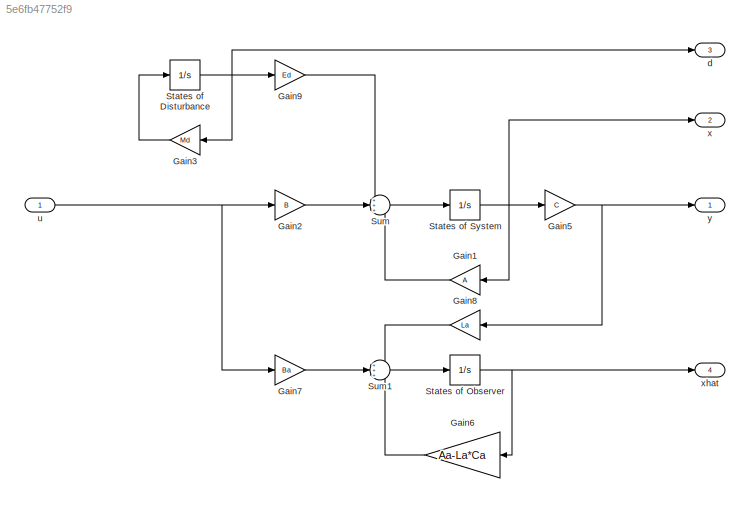
MODEL slx_5e6fb47752f9
KIND model
CONFIG AbsTol = auto
CONFIG FixedStep = auto
CONFIG MaxStep = auto
CONFIG MinStep = auto
CONFIG RelTol = 1e-3
CONFIG SampleTimeConstraint = Unconstrained
CONFIG Solver = VariableStepAuto
CONFIG SolverMode = Auto
CONFIG SolverName = VariableStepAuto
CONFIG StartTime = 0.0
CONFIG StopTime = tEnd
BLOCK [Gain] Gain1
  Gain = A
  Multiplication = Matrix(K*u) (u vector)
  OutDataTypeStr = Inherit: Inherit via internal rule
  ParamDataTypeStr = Inherit: Inherit via internal rule
  SaturateOnIntegerOverflow = off
BLOCK [Gain] Gain2
  Gain = B
  Multiplication = Matrix(K*u) (u vector)
  OutDataTypeStr = Inherit: Inherit via internal rule
  ParamDataTypeStr = Inherit: Inherit via internal rule
  SaturateOnIntegerOverflow = off
BLOCK [Gain] Gain3
  Gain = Md
  Multiplication = Matrix(K*u) (u vector)
  OutDataTypeStr = Inherit: Inherit via internal rule
  ParamDataTypeStr = Inherit: Inherit via internal rule
  SaturateOnIntegerOverflow = off
BLOCK [Gain] Gain5
  Gain = C
  Multiplication = Matrix(K*u) (u vector)
  OutDataTypeStr = Inherit: Inherit via internal rule
  ParamDataTypeStr = Inherit: Inherit via internal rule
  SaturateOnIntegerOverflow = off
BLOCK [Gain] Gain6
  Gain = Aa-La*Ca
  Multiplication = Matrix(K*u) (u vector)
  OutDataTypeStr = Inherit: Inherit via internal rule
  ParamDataTypeStr = Inherit: Inherit via internal rule
  SaturateOnIntegerOverflow = off
BLOCK [Gain] Gain7
  Gain = Ba
  Multiplication = Matrix(K*u) (u vector)
  OutDataTypeStr = Inherit: Inherit via internal rule
  ParamDataTypeStr = Inherit: Inherit via internal rule
  SaturateOnIntegerOverflow = off
BLOCK [Gain] Gain8
  Gain = La
  Multiplication = Matrix(K*u) (u vector)
  OutDataTypeStr = Inherit: Inherit via internal rule
  ParamDataTypeStr = Inherit: Inherit via internal rule
  SaturateOnIntegerOverflow = off
BLOCK [Gain] Gain9
  Gain = Ed
  Multiplication = Matrix(K*u) (u vector)
  OutDataTypeStr = Inherit: Inherit via internal rule
  ParamDataTypeStr = Inherit: Inherit via internal rule
  SaturateOnIntegerOverflow = off
BLOCK [Integrator] States of Disturbance
  InitialCondition = d0
  Ports = [1, 1]
BLOCK [Integrator] States of Observer
  InitialCondition = xhat0
  Ports = [1, 1]
BLOCK [Integrator] States of System
  InitialCondition = x0
  Ports = [1, 1]
BLOCK [Sum] Sum
  IconShape = round
  InputSameDT = off
  Inputs = +++
  OutDataTypeStr = Inherit: Inherit via internal rule
  Ports = [3, 1]
  SaturateOnIntegerOverflow = off
BLOCK [Sum] Sum1
  IconShape = round
  InputSameDT = off
  Inputs = +++
  OutDataTypeStr = Inherit: Inherit via internal rule
  Ports = [3, 1]
  SaturateOnIntegerOverflow = off
BLOCK [Outport] d
  IconDisplay = Port number
  Port = 3
BLOCK [Inport] u
  IconDisplay = Port number
BLOCK [Outport] x
  IconDisplay = Port number
  Port = 2
BLOCK [Outport] xhat
  IconDisplay = Port number
  Port = 4
BLOCK [Outport] y
  IconDisplay = Port number
LINE Gain1:1 -> Sum:3
LINE Gain2:1 -> Sum:2
LINE Gain3:1 -> States of Disturbance:1
NET Gain5:1 -> Gain8:1, y:1
LINE Gain6:1 -> Sum1:3
LINE Gain7:1 -> Sum1:2
LINE Gain8:1 -> Sum1:1
LINE Gain9:1 -> Sum:1
NET States of Disturbance:1 -> Gain3:1, Gain9:1, d:1
NET States of Observer:1 -> Gain6:1, xhat:1
NET States of System:1 -> Gain1:1, Gain5:1, x:1
LINE Sum1:1 -> States of Observer:1
LINE Sum:1 -> States of System:1
NET u:1 -> Gain2:1, Gain7:1
note: NET lines group one-source signal fan-out (src -> all destinations, sorted); 1:1 wires keep LINE
